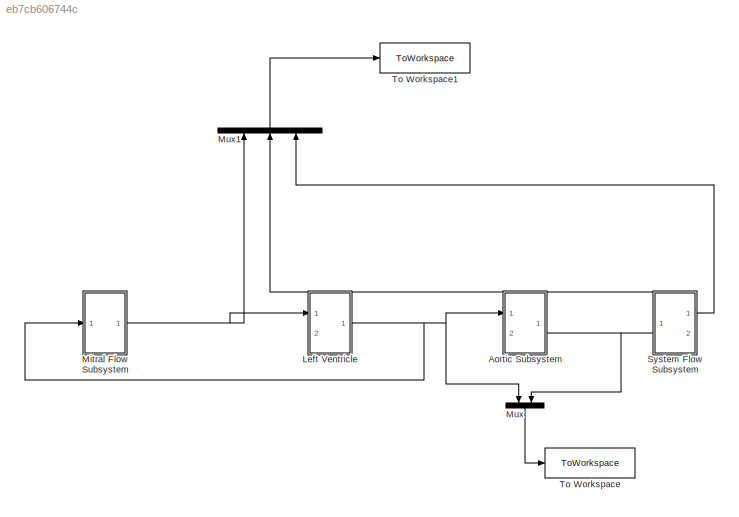
MODEL slx_eb7cb606744c
KIND model
CONFIG AbsTol = auto
CONFIG EnableMultiTasking = off
CONFIG FixedStep = dt
CONFIG MaxStep = auto
CONFIG MinStep = auto
CONFIG RelTol = 1e-3
CONFIG SampleTimeConstraint = Unconstrained
CONFIG SolverName = FixedStepAuto
CONFIG StartTime = 0.0
CONFIG StopTime = 0.2
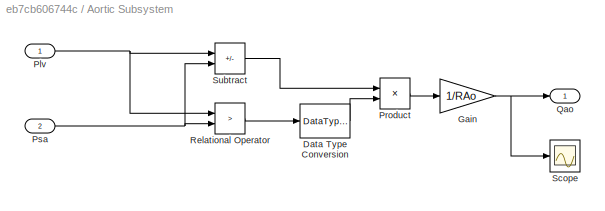
BLOCK [SubSystem] Aortic Subsystem
  PortSchema = {"entries":[{"content":{"sides":[{"content":{"connectorIds":["In1"]},"type":"ConnectorPlacement.EquallySpacedRectSide","uuid":"9d62a5ea-3505-45d4-b119-238d7ae834df"},{"content":{"connectorIds":["In2"],"side":"RIGHT"},"type":"ConnectorPlacement.EquallySpacedRectSide","uuid":"0c5e2ede-72a3-4098-af13-c35576c08d5e"},{"content":{"connectorIds":["Out1"],"side":"TOP"},"type":"ConnectorPlacement.EquallySp...<+389ch>
  Ports = [2, 1]
  RequestExecContextInheritance = off
BLOCK [DataTypeConversion] Aortic Subsystem/Data Type Conversion
  OutDataTypeStr = double
  RndMeth = Floor
  SaturateOnIntegerOverflow = off
BLOCK [Gain] Aortic Subsystem/Gain
  Gain = 1/RAo
BLOCK [Inport] Aortic Subsystem/Plv
BLOCK [Product] Aortic Subsystem/Product
  Ports = [2, 1]
  RndMeth = Zero
BLOCK [Inport] Aortic Subsystem/Psa
  Port = 2
BLOCK [Outport] Aortic Subsystem/Qao
BLOCK [RelationalOperator] Aortic Subsystem/Relational Operator
  InputSameDT = off
  Operator = >
  OutDataTypeStr = boolean
  Ports = [2, 1]
BLOCK [Scope] Aortic Subsystem/Scope
  Floating = off
  NumInputPorts = 1
  Ports = [1]
  ScopeSpecificationString = Simulink.scopes.TimeScopeBlockCfg('CurrentConfiguration', extmgr.ConfigurationSet(extmgr.Configuration('Core','General UI',true),extmgr.Configuration('Core','Source UI',true),extmgr.Configuration('Sources','WiredSimulink',true,'DataLoggingVariableName','ScopeData4'),extmgr.Configuration('Visuals','Time Domain',true,'SerializedDisplays',{struct('MinYLimReal','-10.51646','MaxYLimReal','94.6481','YLa...<+1395ch>
BLOCK [Sum] Aortic Subsystem/Subtract
  IconShape = rectangular
  Inputs = +-
  Ports = [2, 1]
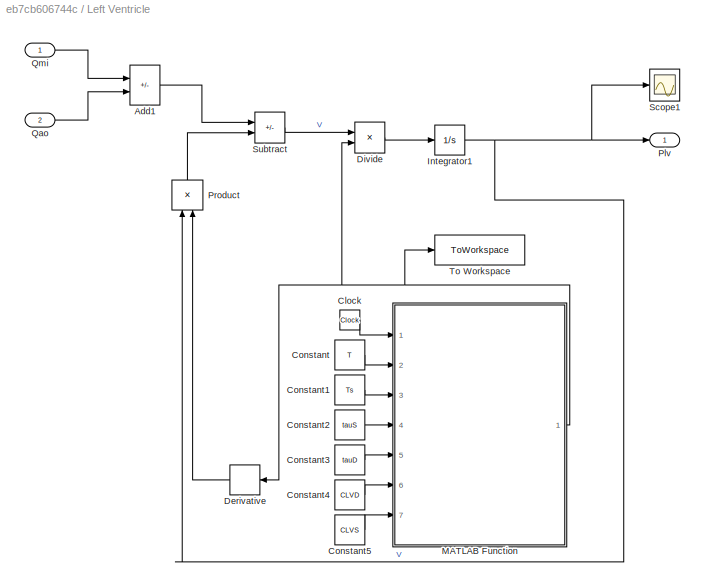
BLOCK [SubSystem] Left Ventricle
  PortSchema = {"entries":[{"content":{"sides":[{"content":{"connectorIds":["In1"]},"type":"ConnectorPlacement.EquallySpacedRectSide","uuid":"9d62a5ea-3505-45d4-b119-238d7ae834df"},{"content":{"connectorIds":["Out1"],"side":"RIGHT"},"type":"ConnectorPlacement.EquallySpacedRectSide","uuid":"0c5e2ede-72a3-4098-af13-c35576c08d5e"},{"content":{"connectorIds":["In2"],"side":"TOP"},"type":"ConnectorPlacement.EquallySp...<+389ch>
  Ports = [2, 1]
  RequestExecContextInheritance = off
BLOCK [Sum] Left Ventricle/Add1
  IconShape = rectangular
  Inputs = +-
  Ports = [2, 1]
BLOCK [Clock] Left Ventricle/Clock
BLOCK [Constant] Left Ventricle/Constant
  Value = T
BLOCK [Constant] Left Ventricle/Constant1
  Value = Ts
BLOCK [Constant] Left Ventricle/Constant2
  Value = tauS
BLOCK [Constant] Left Ventricle/Constant3
  Value = tauD
BLOCK [Constant] Left Ventricle/Constant4
  Value = CLVD
BLOCK [Constant] Left Ventricle/Constant5
  Value = CLVS
BLOCK [Derivative] Left Ventricle/Derivative
BLOCK [Product] Left Ventricle/Divide
  Inputs = */
  Ports = [2, 1]
BLOCK [Integrator] Left Ventricle/Integrator1
  InitialCondition = Plvi
  Ports = [1, 1]
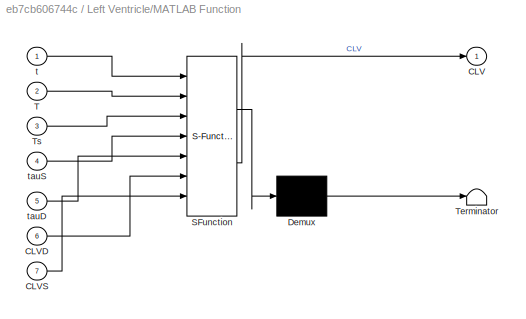
BLOCK [SubSystem] Left Ventricle/MATLAB Function
  ErrorFcn = Stateflow.Translate.translate
  PermitHierarchicalResolution = ExplicitOnly
  Ports = [7, 1]
  RequestExecContextInheritance = off
  SFBlockType = MATLAB Function
  TreatAsAtomicUnit = on
BLOCK [Demux] Left Ventricle/MATLAB Function/ Demux 
  Outputs = 1
  Ports = [1, 1]
BLOCK [S-Function] Left Ventricle/MATLAB Function/ SFunction 
  EnableBusSupport = on
  FunctionName = sf_sfun
  PortCounts = [7 2]
  Ports = [7, 2]
  SFcnIsStateOwnerBlock = off
  SFunctionDeploymentMode = off
  Tag = Stateflow S-Function 2
BLOCK [Terminator] Left Ventricle/MATLAB Function/ Terminator 
BLOCK [Outport] Left Ventricle/MATLAB Function/CLV
BLOCK [Inport] Left Ventricle/MATLAB Function/CLVD
  Port = 6
BLOCK [Inport] Left Ventricle/MATLAB Function/CLVS
  Port = 7
BLOCK [Inport] Left Ventricle/MATLAB Function/T
  Port = 2
BLOCK [Inport] Left Ventricle/MATLAB Function/Ts
  Port = 3
BLOCK [Inport] Left Ventricle/MATLAB Function/t
BLOCK [Inport] Left Ventricle/MATLAB Function/tauD
  Port = 5
BLOCK [Inport] Left Ventricle/MATLAB Function/tauS
  Port = 4
BLOCK [Outport] Left Ventricle/Plv
BLOCK [Product] Left Ventricle/Product
  NameLocation = right
  Ports = [2, 1]
BLOCK [Inport] Left Ventricle/Qao
  Port = 2
BLOCK [Inport] Left Ventricle/Qmi
BLOCK [Scope] Left Ventricle/Scope1
  Floating = off
  NumInputPorts = 1
  Ports = [1]
  ScopeSpecificationString = Simulink.scopes.TimeScopeBlockCfg('CurrentConfiguration', extmgr.ConfigurationSet(extmgr.Configuration('Core','General UI',true),extmgr.Configuration('Core','Source UI',true),extmgr.Configuration('Sources','WiredSimulink',true,'DataLoggingVariableName','ScopeData3'),extmgr.Configuration('Visuals','Time Domain',true,'SerializedDisplays',{struct('MinYLimReal','4.00000','MaxYLimReal','6.00000','YLabe...<+1449ch>
BLOCK [Sum] Left Ventricle/Subtract
  IconShape = rectangular
  Inputs = +-
  Ports = [2, 1]
BLOCK [ToWorkspace] Left Ventricle/To Workspace
  FixptAsFi = on
  MaxDataPoints = inf
  Ports = [1]
  SampleTime = -1
  SaveFormat = Timeseries
  VariableName = clv
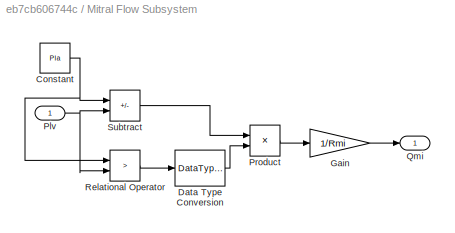
BLOCK [SubSystem] Mitral Flow Subsystem
  Ports = [1, 1]
  RequestExecContextInheritance = off
BLOCK [Constant] Mitral Flow Subsystem/Constant
  Value = Pla
BLOCK [DataTypeConversion] Mitral Flow Subsystem/Data Type Conversion
  OutDataTypeStr = double
  RndMeth = Floor
  SaturateOnIntegerOverflow = off
BLOCK [Gain] Mitral Flow Subsystem/Gain
  Gain = 1/Rmi
BLOCK [Inport] Mitral Flow Subsystem/Plv
BLOCK [Product] Mitral Flow Subsystem/Product
  Ports = [2, 1]
  RndMeth = Zero
BLOCK [Outport] Mitral Flow Subsystem/Qmi
BLOCK [RelationalOperator] Mitral Flow Subsystem/Relational Operator
  InputSameDT = off
  Operator = >
  OutDataTypeStr = boolean
  Ports = [2, 1]
BLOCK [Sum] Mitral Flow Subsystem/Subtract
  IconShape = rectangular
  Inputs = +-
  Ports = [2, 1]
BLOCK [Mux] Mux
  DisplayOption = bar
  Inputs = 2
  NameLocation = left
  Ports = [2, 1]
BLOCK [Mux] Mux1
  DisplayOption = bar
  Inputs = 3
  NameLocation = left
  Ports = [3, 1]
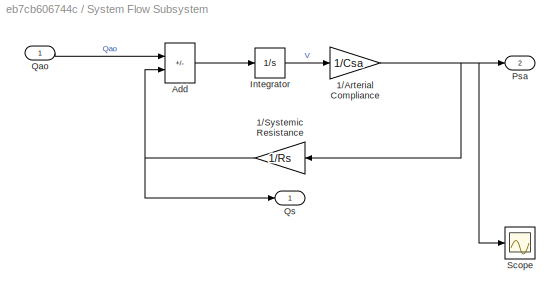
BLOCK [SubSystem] System Flow Subsystem
  PortSchema = {"entries":[{"content":{"sides":[{"content":{"connectorIds":["Out2"]},"type":"ConnectorPlacement.EquallySpacedRectSide","uuid":"4fa4a1e0-8a26-47a7-8728-447bee4a4971"},{"content":{"connectorIds":["Out1"],"side":"RIGHT"},"type":"ConnectorPlacement.EquallySpacedRectSide","uuid":"09528f8c-f905-4103-939c-a6d150bb3e04"},{"content":{"connectorIds":["In1"],"side":"TOP"},"type":"ConnectorPlacement.EquallyS...<+246ch>
  Ports = [1, 2]
  RequestExecContextInheritance = off
BLOCK [Gain] System Flow Subsystem/1//Arterial Compliance
  Gain = 1/Csa
BLOCK [Gain] System Flow Subsystem/1//Systemic Resistance 
  Gain = 1/Rs
BLOCK [Sum] System Flow Subsystem/Add
  IconShape = rectangular
  Inputs = +-
  Ports = [2, 1]
BLOCK [Integrator] System Flow Subsystem/Integrator
  InitialCondition = Psai*Csa
  Ports = [1, 1]
BLOCK [Outport] System Flow Subsystem/Psa
  Port = 2
BLOCK [Inport] System Flow Subsystem/Qao
BLOCK [Outport] System Flow Subsystem/Qs
BLOCK [Scope] System Flow Subsystem/Scope
  Floating = off
  NumInputPorts = 1
  Ports = [1]
  ScopeSpecificationString = Simulink.scopes.TimeScopeBlockCfg('CurrentConfiguration', extmgr.ConfigurationSet(extmgr.Configuration('Core','General UI',true),extmgr.Configuration('Core','Source UI',true),extmgr.Configuration('Sources','WiredSimulink',true,'DataLoggingVariableName','ScopeData2'),extmgr.Configuration('Visuals','Time Domain',true,'SerializedDisplays',{struct('MinYLimReal','72.47402','MaxYLimReal','117.53053','YL...<+1492ch>
BLOCK [ToWorkspace] To Workspace
  FixptAsFi = on
  MaxDataPoints = inf
  Ports = [1]
  SampleTime = -1
  SaveFormat = Timeseries
  VariableName = plv_psa
BLOCK [ToWorkspace] To Workspace1
  FixptAsFi = on
  MaxDataPoints = inf
  Ports = [1]
  SampleTime = -1
  SaveFormat = Timeseries
  VariableName = qmi_qao_qs
LINE Aortic Subsystem/Data Type Conversion:1 -> Aortic Subsystem/Product:2
NET Aortic Subsystem/Gain:1 -> Aortic Subsystem/Qao:1, Aortic Subsystem/Scope:1
NET Aortic Subsystem/Plv:1 -> Aortic Subsystem/Relational Operator:1, Aortic Subsystem/Subtract:1
LINE Aortic Subsystem/Product:1 -> Aortic Subsystem/Gain:1
NET Aortic Subsystem/Psa:1 -> Aortic Subsystem/Relational Operator:2, Aortic Subsystem/Subtract:2
LINE Aortic Subsystem/Relational Operator:1 -> Aortic Subsystem/Data Type Conversion:1
LINE Aortic Subsystem/Subtract:1 -> Aortic Subsystem/Product:1
NET Aortic Subsystem:1 -> Left Ventricle:2, Mux1:2, System Flow Subsystem:1
LINE Left Ventricle/Add1:1 -> Left Ventricle/Subtract:1
LINE Left Ventricle/Clock:1 -> Left Ventricle/MATLAB Function:1
LINE Left Ventricle/Constant1:1 -> Left Ventricle/MATLAB Function:3
LINE Left Ventricle/Constant2:1 -> Left Ventricle/MATLAB Function:4
LINE Left Ventricle/Constant3:1 -> Left Ventricle/MATLAB Function:5
LINE Left Ventricle/Constant4:1 -> Left Ventricle/MATLAB Function:6
LINE Left Ventricle/Constant5:1 -> Left Ventricle/MATLAB Function:7
LINE Left Ventricle/Constant:1 -> Left Ventricle/MATLAB Function:2
LINE Left Ventricle/Derivative:1 -> Left Ventricle/Product:2
LINE Left Ventricle/Divide:1 -> Left Ventricle/Integrator1:1
NET Left Ventricle/Integrator1:1 -> Left Ventricle/Plv:1, Left Ventricle/Product:1, Left Ventricle/Scope1:1
NET Left Ventricle/MATLAB Function:1 -> Left Ventricle/Derivative:1, Left Ventricle/Divide:2, Left Ventricle/To Workspace:1
LINE Left Ventricle/Product:1 -> Left Ventricle/Subtract:2
LINE Left Ventricle/Qao:1 -> Left Ventricle/Add1:2
LINE Left Ventricle/Qmi:1 -> Left Ventricle/Add1:1
LINE Left Ventricle/Subtract:1 -> Left Ventricle/Divide:1
NET Left Ventricle:1 -> Aortic Subsystem:1, Mitral Flow Subsystem:1, Mux:1
NET Mitral Flow Subsystem/Constant:1 -> Mitral Flow Subsystem/Relational Operator:1, Mitral Flow Subsystem/Subtract:1
LINE Mitral Flow Subsystem/Data Type Conversion:1 -> Mitral Flow Subsystem/Product:2
LINE Mitral Flow Subsystem/Gain:1 -> Mitral Flow Subsystem/Qmi:1
NET Mitral Flow Subsystem/Plv:1 -> Mitral Flow Subsystem/Relational Operator:2, Mitral Flow Subsystem/Subtract:2
LINE Mitral Flow Subsystem/Product:1 -> Mitral Flow Subsystem/Gain:1
LINE Mitral Flow Subsystem/Relational Operator:1 -> Mitral Flow Subsystem/Data Type Conversion:1
LINE Mitral Flow Subsystem/Subtract:1 -> Mitral Flow Subsystem/Product:1
NET Mitral Flow Subsystem:1 -> Left Ventricle:1, Mux1:1
LINE Mux1:1 -> To Workspace1:1
LINE Mux:1 -> To Workspace:1
NET System Flow Subsystem/1//Arterial Compliance:1 -> System Flow Subsystem/1//Systemic Resistance :1, System Flow Subsystem/Psa:1, System Flow Subsystem/Scope:1
NET System Flow Subsystem/1//Systemic Resistance :1 -> System Flow Subsystem/Add:2, System Flow Subsystem/Qs:1
LINE System Flow Subsystem/Add:1 -> System Flow Subsystem/Integrator:1
LINE System Flow Subsystem/Integrator:1 -> System Flow Subsystem/1//Arterial Compliance:1
LINE System Flow Subsystem/Qao:1 -> System Flow Subsystem/Add:1
LINE System Flow Subsystem:1 -> Mux1:3
NET System Flow Subsystem:2 -> Aortic Subsystem:2, Mux:2
note: NET lines group one-source signal fan-out (src -> all destinations, sorted); 1:1 wires keep LINE
CHART Left Ventricle/MATLAB Function states=1 transitions=1
  STATE_LABEL 'eML_blk_kernel()'
  STATE_LABEL 'SCRIPT:\nfunction CLV=CLV_now(t, T, Ts, tauS, tauD, CLVD, CLVS) \ntc=rem(t,T); \n%tc=time in the current cycle, \n%measured  from  start  of systole. \nif(tc<Ts) \n    e=(1-exp(-tc/tauS))/(1-exp(-Ts/tauS)); \n    CLV=CLVD*(CLVS/CLVD)^e; \nelse \n    e=(1-exp(-(tc-Ts)/tauD))/(1-exp(-(T-Ts)/tauD)); \n    CLV=CLVS*(CLVD/CLVS)^e; \nend '
CHART  states=0 transitions=0
